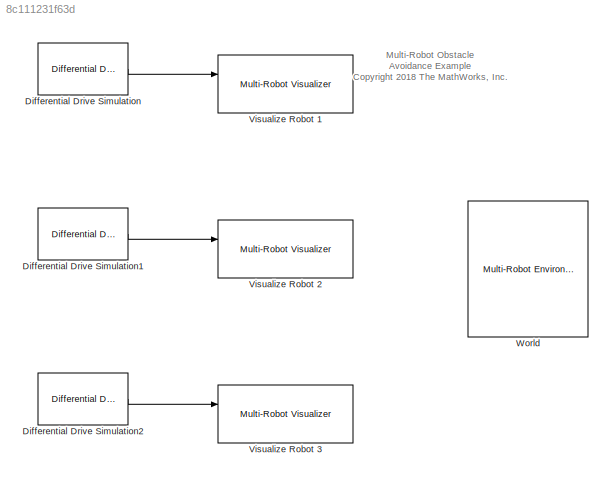
MODEL slx_8c111231f63d
KIND model
CONFIG AbsTol = auto
CONFIG EnableMultiTasking = off
CONFIG FixedStep = sampleTime
CONFIG MaxStep = auto
CONFIG MinStep = auto
CONFIG PreLoadFcn = % Simulation parameters\nload exampleMap\nsampleTime = 0.05;\n\n% Robot parameters\nwheelRadius = 0.025;\nrobotRadius = 0.35;\n\n% Lidar parameters\nsensorOffset = [0,0];\nscanAngles = linspace(-pi/2,pi/2,9)';\nmaxRange = 5;
CONFIG RelTol = 1e-3
CONFIG SampleTimeConstraint = Unconstrained
CONFIG Solver = FixedStepAuto
CONFIG SolverName = FixedStepAuto
CONFIG StartTime = 0.0
CONFIG StopTime = inf
BLOCK [Reference] Differential Drive Simulation  REF=mobileRoboticsLib/Kinematic Models/Differential Drive/Differential Drive Simulation
  Ports = [1, 1]
  SourceBlock = mobileRoboticsLib/Kinematic Models/Differential Drive/Differential Drive Simulation
  SourceProductName = Mobile Robotics Simulation Toolbox
  SourceType = Differential Drive Simulation
BLOCK [Reference] Differential Drive Simulation1  REF=mobileRoboticsLib/Kinematic Models/Differential Drive/Differential Drive Simulation
  Ports = [1, 1]
  SourceBlock = mobileRoboticsLib/Kinematic Models/Differential Drive/Differential Drive Simulation
  SourceProductName = Mobile Robotics Simulation Toolbox
  SourceType = Differential Drive Simulation
BLOCK [Reference] Differential Drive Simulation2  REF=mobileRoboticsLib/Kinematic Models/Differential Drive/Differential Drive Simulation
  Ports = [1, 1]
  SourceBlock = mobileRoboticsLib/Kinematic Models/Differential Drive/Differential Drive Simulation
  SourceProductName = Mobile Robotics Simulation Toolbox
  SourceType = Differential Drive Simulation
BLOCK [Reference] Visualize Robot 1  REF=mobileRoboticsLib/Environments/Multi-Robot Visualizer
  Ports = [2]
  SourceBlock = mobileRoboticsLib/Environments/Multi-Robot Visualizer
  SourceProductName = Mobile Robotics Simulation Toolbox
  SourceType = Multi-Robot Visualizer
BLOCK [Reference] Visualize Robot 2  REF=mobileRoboticsLib/Environments/Multi-Robot Visualizer
  Ports = [2]
  SourceBlock = mobileRoboticsLib/Environments/Multi-Robot Visualizer
  SourceProductName = Mobile Robotics Simulation Toolbox
  SourceType = Multi-Robot Visualizer
BLOCK [Reference] Visualize Robot 3  REF=mobileRoboticsLib/Environments/Multi-Robot Visualizer
  Ports = [2]
  SourceBlock = mobileRoboticsLib/Environments/Multi-Robot Visualizer
  SourceProductName = Mobile Robotics Simulation Toolbox
  SourceType = Multi-Robot Visualizer
BLOCK [Reference] World  REF=mobileRoboticsLib/Environments/Multi-Robot Environment
  Ports = [1]
  SourceBlock = mobileRoboticsLib/Environments/Multi-Robot Environment
  SourceProductName = Mobile Robotics Simulation Toolbox
  SourceType = Multi-Robot Environment
ANNOTATION (root): Multi-Robot Obstacle Avoidance Example <copyright redacted>
LINE Differential Drive Simulation1:1 -> Visualize Robot 2:1
LINE Differential Drive Simulation2:1 -> Visualize Robot 3:1
LINE Differential Drive Simulation:1 -> Visualize Robot 1:1
